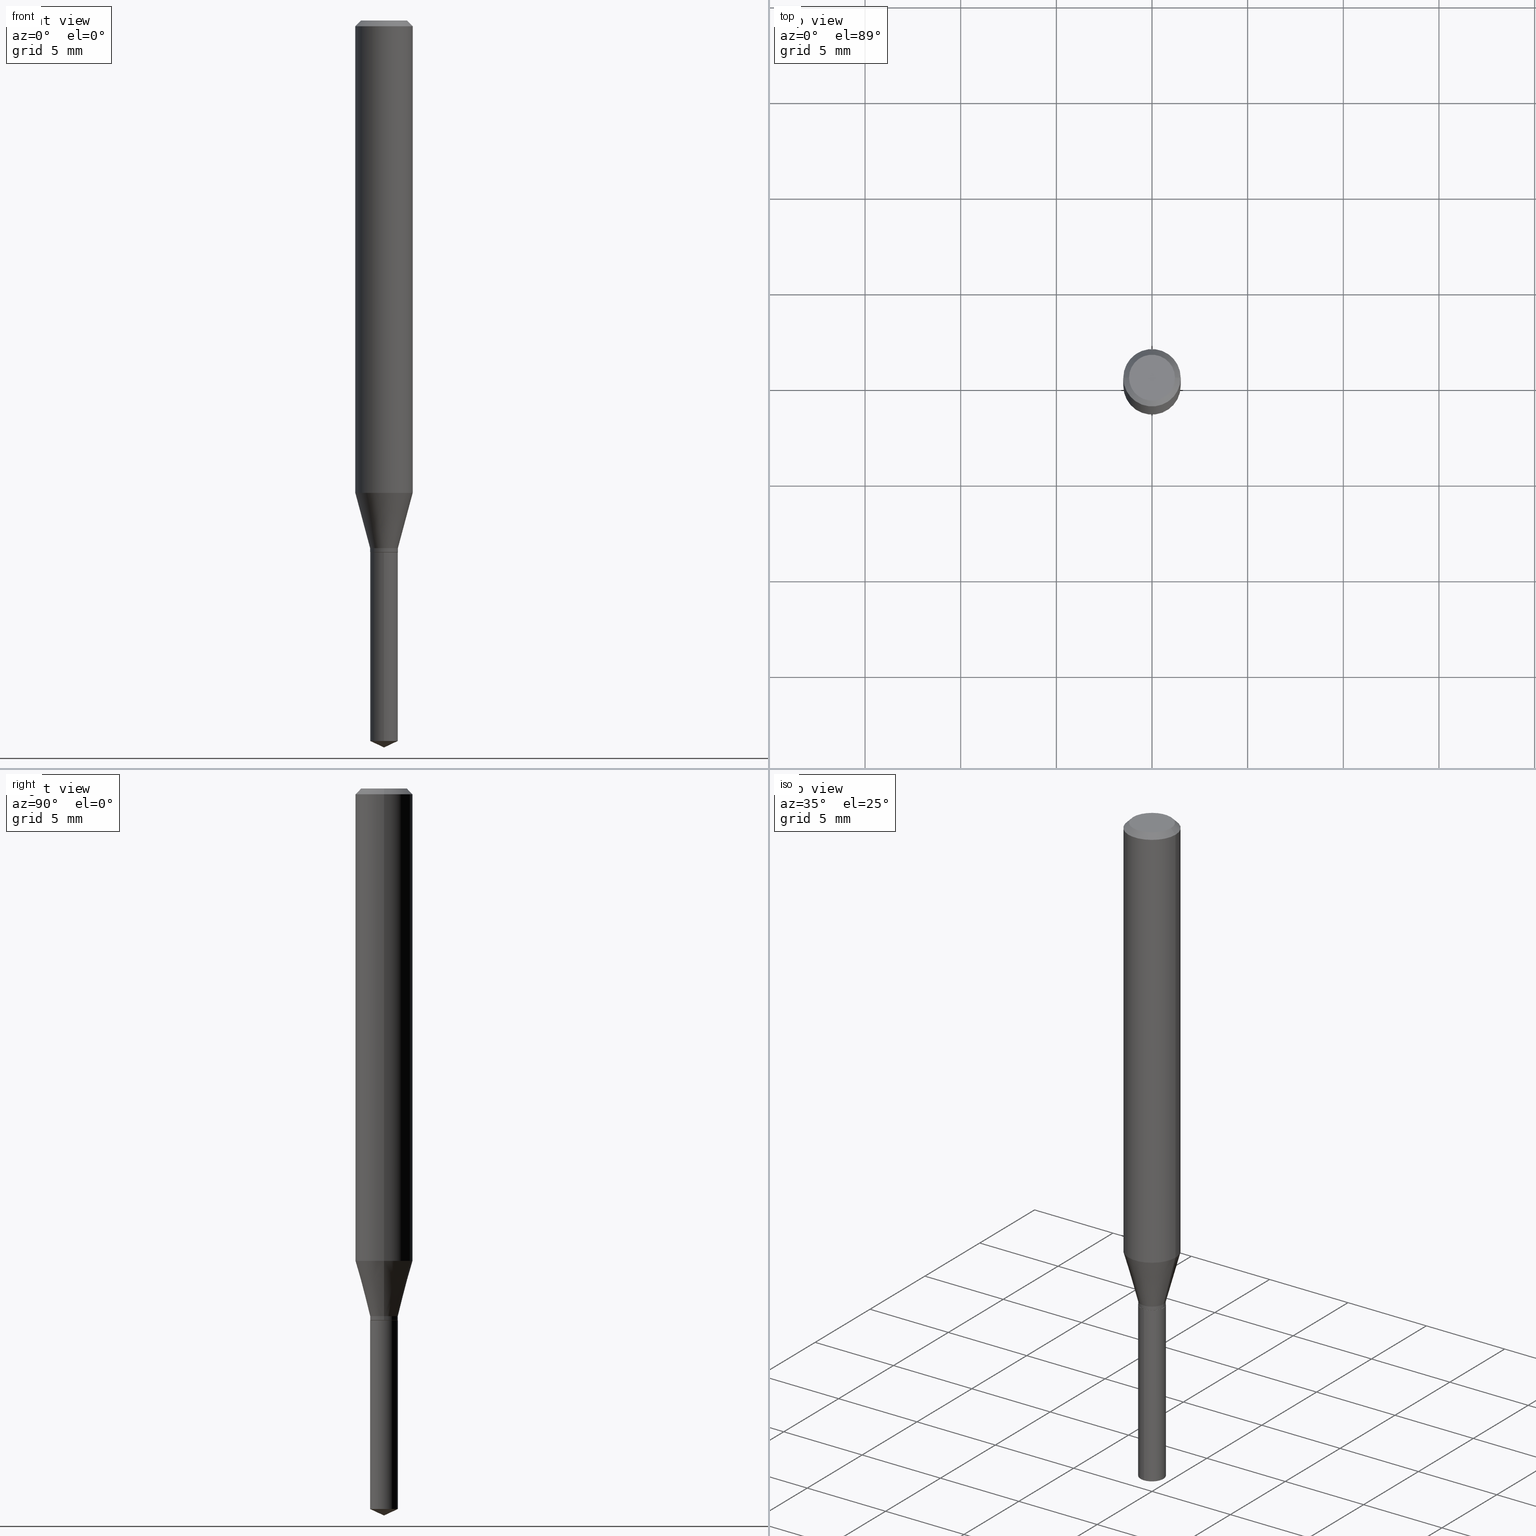
[diagram: canonical four-view strip — front | top / right | iso, engineering-drawing reading convention]
A machine part, canonical four-view strip (front | top / right | iso — engineering-drawing reading convention). The complete STEP part file that produces these views, byte-faithful:
ISO-10303-21;
HEADER;
FILE_DESCRIPTION (( 'STEP AP203' ),
    '1' );
FILE_NAME ('08164.STEP',
    '2024-04-24T13:41:57',
    ( '' ),
    ( '' ),
    'SwSTEP 2.0',
    'SolidWorks 2023',
    '' );
FILE_SCHEMA (( 'CONFIG_CONTROL_DESIGN' ));
ENDSEC;

DATA;
#1 = ORIENTED_EDGE ( 'NONE', *, *, #367, .T. ) ;
#2 = SHAPE_DEFINITION_REPRESENTATION ( #354, #436 ) ;
#3 = EDGE_LOOP ( 'NONE', ( #474, #376, #264, #287 ) ) ;
#4 = LINE ( 'NONE', #158, #81 ) ;
#5 = EDGE_CURVE ( 'NONE', #350, #254, #451, .T. ) ;
#6 = PERSON_AND_ORGANIZATION ( #357, #272 ) ;
#7 = CONICAL_SURFACE ( 'NONE', #411, 0.02855000000000000246, 0.2617993877991500740 ) ;
#8 = FACE_OUTER_BOUND ( 'NONE', #301, .T. ) ;
#9 = PERSON_AND_ORGANIZATION ( #357, #272 ) ;
#10 = CARTESIAN_POINT ( 'NONE',  ( 0.02804999999999999508, -4.017298428472921785E-15, -1.094499999999999806 ) ) ;
#11 = DATE_AND_TIME ( #49, #387 ) ;
#12 = CIRCLE ( 'NONE', #455, 0.02854999999999999899 ) ;
#13 = CARTESIAN_POINT ( 'NONE',  ( 2.676565608369631794E-29, -3.821426325363822773E-15, -1.094499999999999806 ) ) ;
#14 = ADVANCED_FACE ( 'NONE', ( #422 ), #228, .F. ) ;
#15 =( GEOMETRIC_REPRESENTATION_CONTEXT ( 3 ) GLOBAL_UNCERTAINTY_ASSIGNED_CONTEXT ( ( #369 ) ) GLOBAL_UNIT_ASSIGNED_CONTEXT ( ( #490, #222, #188 ) ) REPRESENTATION_CONTEXT ( 'NONE', 'WORKASPACE' ) );
#16 = CARTESIAN_POINT ( 'NONE',  ( 2.888098660104663328E-31, -4.123439461173779030E-17, -0.01181000000000006871 ) ) ;
#17 = AXIS2_PLACEMENT_3D ( 'NONE', #74, #414, #343 ) ;
#18 = CONICAL_SURFACE ( 'NONE', #300, 0.05904999999999999832, 0.7853981633974452814 ) ;
#19 = DIRECTION ( 'NONE',  ( -2.445468806185136597E-29, 3.491481338843145583E-15, 1.000000000000000000 ) ) ;
#20 = ORIENTED_EDGE ( 'NONE', *, *, #351, .F. ) ;
#21 = CC_DESIGN_DATE_AND_TIME_ASSIGNMENT ( #129, #117, ( #400 ) ) ;
#22 = DIRECTION ( 'NONE',  ( -6.982962677686265133E-15, -1.000000000000000000, 4.784322230585399479E-15 ) ) ;
#23 = ORIENTED_EDGE ( 'NONE', *, *, #328, .F. ) ;
#24 = CARTESIAN_POINT ( 'NONE',  ( 2.655534576636439869E-29, -3.791399585849771334E-15, -1.085899999999999865 ) ) ;
#25 = VERTEX_POINT ( 'NONE', #226 ) ;
#26 = CARTESIAN_POINT ( 'NONE',  ( 0.000000000000000000, 0.000000000000000000, 0.000000000000000000 ) ) ;
#27 = LINE ( 'NONE', #178, #423 ) ;
#28 = PRODUCT_RELATED_PRODUCT_CATEGORY ( 'detail', '', ( #267 ) ) ;
#29 = CIRCLE ( 'NONE', #91, 0.04724000000000000421 ) ;
#30 = EDGE_LOOP ( 'NONE', ( #114, #327, #485, #295 ) ) ;
#31 = APPLICATION_CONTEXT ( 'configuration controlled 3d designs of mechanical parts and assemblies' ) ;
#32 = FACE_OUTER_BOUND ( 'NONE', #193, .T. ) ;
#33 = CARTESIAN_POINT ( 'NONE',  ( 2.655534576636439869E-29, -3.791399585849771334E-15, -1.085899999999999865 ) ) ;
#34 = ADVANCED_FACE ( 'NONE', ( #381 ), #302, .T. ) ;
#35 = ORIENTED_EDGE ( 'NONE', *, *, #487, .F. ) ;
#36 = CARTESIAN_POINT ( 'NONE',  ( 0.000000000000000000, 0.000000000000000000, 0.000000000000000000 ) ) ;
#37 = EDGE_LOOP ( 'NONE', ( #403, #104, #231, #154 ) ) ;
#38 = LOCAL_TIME ( 9, 41, 57.00000000000000000, #89 ) ;
#39 = VECTOR ( 'NONE', #435, 39.37007874015748143 ) ;
#40 = VERTEX_POINT ( 'NONE', #341 ) ;
#41 = CARTESIAN_POINT ( 'NONE',  ( 0.000000000000000000, 0.000000000000000000, 0.000000000000000000 ) ) ;
#42 = VECTOR ( 'NONE', #113, 39.37007874015747433 ) ;
#43 = APPROVAL ( #316, 'UNSPECIFIED' ) ;
#44 = COORDINATED_UNIVERSAL_TIME_OFFSET ( 5, 0, .BEHIND. ) ;
#45 = LINE ( 'NONE', #52, #58 ) ;
#46 = EDGE_CURVE ( 'NONE', #62, #40, #307, .T. ) ;
#47 = CARTESIAN_POINT ( 'NONE',  ( -0.02855000000000000246, -3.602680134212577558E-15, -1.085899999999999865 ) ) ;
#48 = ADVANCED_FACE ( 'NONE', ( #309 ), #148, .T. ) ;
#49 = CALENDAR_DATE ( 2024, 24, 4 ) ;
#50 = DIRECTION ( 'NONE',  ( -2.445468806185136597E-29, 3.491481338843145583E-15, 1.000000000000000000 ) ) ;
#51 = VECTOR ( 'NONE', #368, 39.37007874015748143 ) ;
#52 = CARTESIAN_POINT ( 'NONE',  ( -0.05904999999999999832, 3.711095515056362547E-16, -0.01181000000000006871 ) ) ;
#53 = VECTOR ( 'NONE', #303, 39.37007874015748143 ) ;
#54 = CARTESIAN_POINT ( 'NONE',  ( 2.028599510595448342E-16, 0.02854999999999481564, -1.482786916359674967 ) ) ;
#55 = AXIS2_PLACEMENT_3D ( 'NONE', #13, #362, #197 ) ;
#56 = DIRECTION ( 'NONE',  ( 1.000000000000000000, -6.982962677686266711E-15, 4.876176775795935232E-29 ) ) ;
#57 = ORIENTED_EDGE ( 'NONE', *, *, #372, .F. ) ;
#58 = VECTOR ( 'NONE', #461, 39.37007874015748143 ) ;
#59 = DIRECTION ( 'NONE',  ( -6.982962677686265133E-15, -1.000000000000000000, 0.000000000000000000 ) ) ;
#60 = LINE ( 'NONE', #286, #39 ) ;
#61 = LOCAL_TIME ( 9, 41, 57.00000000000000000, #464 ) ;
#62 = VERTEX_POINT ( 'NONE', #245 ) ;
#63 = CONICAL_SURFACE ( 'NONE', #128, 0.02804999999999999508, 0.7853981633974184140 ) ;
#64 = ADVANCED_FACE ( 'NONE', ( #398 ), #342, .T. ) ;
#65 = DIRECTION ( 'NONE',  ( -2.445468806185136597E-29, 3.491481338843145583E-15, 1.000000000000000000 ) ) ;
#66 = ORIENTED_EDGE ( 'NONE', *, *, #389, .F. ) ;
#67 = CARTESIAN_POINT ( 'NONE',  ( 3.658531675699582644E-29, -5.223797420576805502E-15, -1.496099999999999985 ) ) ;
#68 = CARTESIAN_POINT ( 'NONE',  ( 0.02855000000000000246, -4.019044169142343288E-15, -1.093999999999999861 ) ) ;
#69 = DIRECTION ( 'NONE',  ( 1.000000000000000000, -6.982962677686265922E-15, 4.876176775795935793E-29 ) ) ;
#70 = CARTESIAN_POINT ( 'NONE',  ( 2.655534576636439869E-29, -3.791399585849771334E-15, -1.085899999999999865 ) ) ;
#71 = EDGE_LOOP ( 'NONE', ( #235, #138, #66 ) ) ;
#72 = ORIENTED_EDGE ( 'NONE', *, *, #137, .F. ) ;
#73 = CIRCLE ( 'NONE', #99, 0.02804999999999999508 ) ;
#74 = CARTESIAN_POINT ( 'NONE',  ( 3.626184356031370148E-29, -5.177015148886716837E-15, -1.482786916359674967 ) ) ;
#75 = AXIS2_PLACEMENT_3D ( 'NONE', #70, #227, #382 ) ;
#76 = ORIENTED_EDGE ( 'NONE', *, *, #207, .F. ) ;
#77 = CIRCLE ( 'NONE', #335, 0.02855000000000000246 ) ;
#78 = APPROVAL_STATUS ( 'not_yet_approved' ) ;
#79 = EDGE_CURVE ( 'NONE', #330, #248, #45, .T. ) ;
#80 = CARTESIAN_POINT ( 'NONE',  ( 2.675342873966538993E-29, -3.819680584694400481E-15, -1.093999999999999861 ) ) ;
#81 = VECTOR ( 'NONE', #130, 39.37007874015748143 ) ;
#82 = APPLICATION_PROTOCOL_DEFINITION ( 'international standard', 'config_control_design', 1994, #135 ) ;
#83 = CARTESIAN_POINT ( 'NONE',  ( -0.05905000000000011628, -2.974397335001072911E-15, -0.9720724503691490215 ) ) ;
#84 = AXIS2_PLACEMENT_3D ( 'NONE', #33, #488, #186 ) ;
#85 = DATE_AND_TIME ( #278, #61 ) ;
#86 = DIRECTION ( 'NONE',  ( 2.445468806185136597E-29, -3.491481338843145583E-15, -1.000000000000000000 ) ) ;
#87 = CALENDAR_DATE ( 2024, 24, 4 ) ;
#88 = CARTESIAN_POINT ( 'NONE',  ( 2.676565608369631794E-29, -3.821426325363822773E-15, -1.094499999999999806 ) ) ;
#89 = COORDINATED_UNIVERSAL_TIME_OFFSET ( 5, 0, .BEHIND. ) ;
#90 = CYLINDRICAL_SURFACE ( 'NONE', #232, 0.05905000000000006077 ) ;
#91 = AXIS2_PLACEMENT_3D ( 'NONE', #409, #288, #177 ) ;
#92 = CARTESIAN_POINT ( 'NONE',  ( 2.676565608369631794E-29, -3.821426325363822773E-15, -1.094499999999999806 ) ) ;
#93 = EDGE_LOOP ( 'NONE', ( #470, #223 ) ) ;
#94 = DIRECTION ( 'NONE',  ( -2.445468806185136597E-29, 3.491481338843145583E-15, 1.000000000000000000 ) ) ;
#95 = EDGE_CURVE ( 'NONE', #189, #152, #124, .T. ) ;
#96 = LINE ( 'NONE', #406, #51 ) ;
#97 = EDGE_LOOP ( 'NONE', ( #383, #374, #212, #483 ) ) ;
#98 = CARTESIAN_POINT ( 'NONE',  ( -0.05905000000000006077, 4.195754854663395916E-16, -2.904631170795524694E-30 ) ) ;
#99 = AXIS2_PLACEMENT_3D ( 'NONE', #88, #50, #203 ) ;
#100 = ORIENTED_EDGE ( 'NONE', *, *, #265, .F. ) ;
#101 = AXIS2_PLACEMENT_3D ( 'NONE', #345, #308, #453 ) ;
#102 = ADVANCED_FACE ( 'NONE', ( #321 ), #425, .T. ) ;
#103 = FACE_OUTER_BOUND ( 'NONE', #37, .T. ) ;
#104 = ORIENTED_EDGE ( 'NONE', *, *, #487, .T. ) ;
#105 = CIRCLE ( 'NONE', #482, 0.02854999999999999899 ) ;
#106 = DIRECTION ( 'NONE',  ( 1.000000000000000000, -6.982962677686258822E-15, 0.000000000000000000 ) ) ;
#107 = ORIENTED_EDGE ( 'NONE', *, *, #5, .T. ) ;
#108 = CC_DESIGN_PERSON_AND_ORGANIZATION_ASSIGNMENT ( #190, #431, ( #267 ) ) ;
#109 = VERTEX_POINT ( 'NONE', #10 ) ;
#110 = DIRECTION ( 'NONE',  ( -2.445468806185136597E-29, 3.491481338843145583E-15, 1.000000000000000000 ) ) ;
#111 = ORIENTED_EDGE ( 'NONE', *, *, #452, .T. ) ;
#112 = CYLINDRICAL_SURFACE ( 'NONE', #253, 0.02855000000000000246 ) ;
#113 = DIRECTION ( 'NONE',  ( 0.2588190451025213501, 1.565188264969621968E-15, 0.9659258262890682012 ) ) ;
#114 = ORIENTED_EDGE ( 'NONE', *, *, #466, .F. ) ;
#115 = VECTOR ( 'NONE', #475, 39.37007874015748143 ) ;
#116 = APPROVAL ( #388, 'UNSPECIFIED' ) ;
#117 = DATE_TIME_ROLE ( 'classification_date' ) ;
#118 = VECTOR ( 'NONE', #447, 39.37007874015748143 ) ;
#119 = DIRECTION ( 'NONE',  ( -6.982962677686266711E-15, -1.000000000000000000, 3.520397390770418371E-15 ) ) ;
#120 = EDGE_CURVE ( 'NONE', #448, #407, #122, .T. ) ;
#121 = DIRECTION ( 'NONE',  ( 6.439704144417040608E-15, 0.9063077870366537114, 0.4226182617406912811 ) ) ;
#122 = CIRCLE ( 'NONE', #168, 0.02855000000000000246 ) ;
#123 = PERSON_AND_ORGANIZATION_ROLE ( 'creator' ) ;
#124 = LINE ( 'NONE', #274, #405 ) ;
#125 = CC_DESIGN_PERSON_AND_ORGANIZATION_ASSIGNMENT ( #156, #123, ( #294 ) ) ;
#126 = AXIS2_PLACEMENT_3D ( 'NONE', #310, #465, #119 ) ;
#127 = DIRECTION ( 'NONE',  ( -2.445468806185136597E-29, 3.491481338843145583E-15, 1.000000000000000000 ) ) ;
#128 = AXIS2_PLACEMENT_3D ( 'NONE', #380, #444, #449 ) ;
#129 = DATE_AND_TIME ( #237, #38 ) ;
#130 = DIRECTION ( 'NONE',  ( -2.445468806185136877E-29, 3.491481338843145188E-15, 1.000000000000000000 ) ) ;
#131 = FACE_OUTER_BOUND ( 'NONE', #386, .T. ) ;
#132 = ADVANCED_FACE ( 'NONE', ( #8 ), #18, .T. ) ;
#133 = DIRECTION ( 'NONE',  ( -6.982962677686265133E-15, -1.000000000000000000, 4.784322230585399479E-15 ) ) ;
#134 = ORIENTED_EDGE ( 'NONE', *, *, #385, .F. ) ;
#135 = APPLICATION_CONTEXT ( 'configuration controlled 3d designs of mechanical parts and assemblies' ) ;
#136 = DIRECTION ( 'NONE',  ( 1.000000000000000000, -6.982962677686266711E-15, 0.000000000000000000 ) ) ;
#137 = EDGE_CURVE ( 'NONE', #40, #268, #4, .T. ) ;
#138 = ORIENTED_EDGE ( 'NONE', *, *, #167, .T. ) ;
#139 = CARTESIAN_POINT ( 'NONE',  ( -1.993635844479161093E-16, -0.02855000000000381885, -1.094499999999999806 ) ) ;
#140 = EDGE_CURVE ( 'NONE', #254, #338, #315, .T. ) ;
#141 = CARTESIAN_POINT ( 'NONE',  ( -0.05904999999999999832, -1.298028122073235376E-15, -0.01181000000000006871 ) ) ;
#142 = CIRCLE ( 'NONE', #292, 0.05905000000000011628 ) ;
#143 = ORIENTED_EDGE ( 'NONE', *, *, #140, .F. ) ;
#144 = LOCAL_TIME ( 9, 41, 57.00000000000000000, #44 ) ;
#145 = CIRCLE ( 'NONE', #323, 0.04724000000000000421 ) ;
#146 = VECTOR ( 'NONE', #121, 39.37007874015748854 ) ;
#147 = ORIENTED_EDGE ( 'NONE', *, *, #402, .T. ) ;
#148 = CONICAL_SURFACE ( 'NONE', #187, 84.42940631927518780, 1.134464013796319781 ) ;
#149 = DIRECTION ( 'NONE',  ( 1.000000000000000000, -6.982962677686266711E-15, 4.876176775795935232E-29 ) ) ;
#150 = ORIENTED_EDGE ( 'NONE', *, *, #259, .F. ) ;
#151 = CARTESIAN_POINT ( 'NONE',  ( 2.028599510595352939E-16, 0.02854999999999617566, -1.094500000000000028 ) ) ;
#152 = VERTEX_POINT ( 'NONE', #83 ) ;
#153 = DIRECTION ( 'NONE',  ( -2.445468806185136597E-29, 3.491481338843145583E-15, 1.000000000000000000 ) ) ;
#154 = ORIENTED_EDGE ( 'NONE', *, *, #285, .F. ) ;
#155 = CC_DESIGN_DATE_AND_TIME_ASSIGNMENT ( #273, #282, ( #281 ) ) ;
#156 = PERSON_AND_ORGANIZATION ( #357, #272 ) ;
#157 = ORIENTED_EDGE ( 'NONE', *, *, #224, .F. ) ;
#158 = CARTESIAN_POINT ( 'NONE',  ( 0.05905000000000006077, -4.123439461173744764E-16, 2.879382386107503023E-30 ) ) ;
#159 = DIRECTION ( 'NONE',  ( -0.2588190451025213501, 5.211531920934551042E-15, 0.9659258262890682012 ) ) ;
#160 = DIRECTION ( 'NONE',  ( 2.445468806185136597E-29, -3.491481338843145583E-15, -1.000000000000000000 ) ) ;
#161 = CONICAL_SURFACE ( 'NONE', #477, 0.05904999999999999832, 0.7853981633974452814 ) ;
#162 = DATE_AND_TIME ( #87, #144 ) ;
#163 = APPROVAL_PERSON_ORGANIZATION ( #9, #394, #352 ) ;
#164 = CARTESIAN_POINT ( 'NONE',  ( 3.626184356031370148E-29, -5.177015148886716837E-15, -1.482786916359674967 ) ) ;
#165 = AXIS2_PLACEMENT_3D ( 'NONE', #364, #19, #249 ) ;
#166 = DIRECTION ( 'NONE',  ( -2.445468806185136597E-29, 3.491481338843145583E-15, 1.000000000000000000 ) ) ;
#167 = EDGE_CURVE ( 'NONE', #350, #250, #428, .T. ) ;
#168 = AXIS2_PLACEMENT_3D ( 'NONE', #80, #206, #238 ) ;
#169 = MANIFOLD_SOLID_BREP ( 'Body-Move/Copy2[2]', #427 ) ;
#170 = DIRECTION ( 'NONE',  ( -2.445468806185136597E-29, 3.491481338843145583E-15, 1.000000000000000000 ) ) ;
#171 = ORIENTED_EDGE ( 'NONE', *, *, #379, .T. ) ;
#172 = ADVANCED_FACE ( 'NONE', ( #201 ), #90, .T. ) ;
#173 = CARTESIAN_POINT ( 'NONE',  ( 2.676565608369631794E-29, -3.821426325363822773E-15, -1.094499999999999806 ) ) ;
#174 = ORIENTED_EDGE ( 'NONE', *, *, #184, .T. ) ;
#175 = DIRECTION ( 'NONE',  ( -2.445468806185136597E-29, 3.491481338843145583E-15, 1.000000000000000000 ) ) ;
#176 = ORIENTED_EDGE ( 'NONE', *, *, #137, .T. ) ;
#177 = DIRECTION ( 'NONE',  ( 1.000000000000000000, -6.982962677686266711E-15, 4.876185090822587894E-29 ) ) ;
#178 = CARTESIAN_POINT ( 'NONE',  ( 0.02855000000000000246, -1.993635844479429306E-16, 1.392148469489739614E-30 ) ) ;
#179 = VECTOR ( 'NONE', #437, 39.37007874015748143 ) ;
#180 = EDGE_LOOP ( 'NONE', ( #157, #419, #176, #413 ) ) ;
#181 = ADVANCED_FACE ( 'NONE', ( #463 ), #314, .F. ) ;
#182 = DIRECTION ( 'NONE',  ( -2.445468806185136597E-29, 3.491481338843145583E-15, 1.000000000000000000 ) ) ;
#183 = DIRECTION ( 'NONE',  ( -6.328713451373386733E-15, -0.9063077870366508249, 0.4226182617406975539 ) ) ;
#184 = EDGE_CURVE ( 'NONE', #25, #338, #12, .T. ) ;
#185 = DIRECTION ( 'NONE',  ( -2.445468806185136597E-29, 3.491481338843145583E-15, 1.000000000000000000 ) ) ;
#186 = DIRECTION ( 'NONE',  ( 1.000000000000000000, -6.982962677686258822E-15, 0.000000000000000000 ) ) ;
#187 = AXIS2_PLACEMENT_3D ( 'NONE', #454, #244, #317 ) ;
#188 =( NAMED_UNIT ( * ) SI_UNIT ( $, .STERADIAN. ) SOLID_ANGLE_UNIT ( ) );
#189 = VERTEX_POINT ( 'NONE', #47 ) ;
#190 = PERSON_AND_ORGANIZATION ( #357, #272 ) ;
#191 = ADVANCED_FACE ( 'NONE', ( #393 ), #161, .T. ) ;
#192 = CC_DESIGN_SECURITY_CLASSIFICATION ( #400, ( #294 ) ) ;
#193 = EDGE_LOOP ( 'NONE', ( #150, #147, #111, #35 ) ) ;
#194 = CONICAL_SURFACE ( 'NONE', #256, 0.02804999999999999508, 0.7853981633974184140 ) ;
#195 = PERSON_AND_ORGANIZATION ( #357, #272 ) ;
#196 = ORIENTED_EDGE ( 'NONE', *, *, #433, .F. ) ;
#197 = DIRECTION ( 'NONE',  ( -6.982962677686265133E-15, -1.000000000000000000, 4.784322230585399479E-15 ) ) ;
#198 = ADVANCED_FACE ( 'NONE', ( #432 ), #242, .T. ) ;
#199 = SECURITY_CLASSIFICATION_LEVEL ( 'unclassified' ) ;
#200 = DIRECTION ( 'NONE',  ( -1.000000000000000000, 6.982962677686266711E-15, 0.000000000000000000 ) ) ;
#201 = FACE_OUTER_BOUND ( 'NONE', #180, .T. ) ;
#202 = PERSON_AND_ORGANIZATION_ROLE ( 'creator' ) ;
#203 = DIRECTION ( 'NONE',  ( 1.000000000000000000, -6.982962677686259611E-15, 0.000000000000000000 ) ) ;
#204 = AXIS2_PLACEMENT_3D ( 'NONE', #459, #397, #283 ) ;
#205 = CIRCLE ( 'NONE', #75, 0.02855000000000000246 ) ;
#206 = DIRECTION ( 'NONE',  ( -2.445468806185136597E-29, 3.491481338843145583E-15, 1.000000000000000000 ) ) ;
#207 = EDGE_CURVE ( 'NONE', #109, #332, #73, .T. ) ;
#208 = AXIS2_PLACEMENT_3D ( 'NONE', #217, #166, #324 ) ;
#209 = CARTESIAN_POINT ( 'NONE',  ( 0.05904999999999999832, -4.535783407291118600E-16, -0.01181000000000006871 ) ) ;
#210 = ORIENTED_EDGE ( 'NONE', *, *, #379, .F. ) ;
#211 = CARTESIAN_POINT ( 'NONE',  ( -1.993635844479065690E-16, -0.02855000000000517194, -1.482786916359674967 ) ) ;
#212 = ORIENTED_EDGE ( 'NONE', *, *, #120, .F. ) ;
#213 = AXIS2_PLACEMENT_3D ( 'NONE', #344, #450, #69 ) ;
#214 = EDGE_CURVE ( 'NONE', #250, #254, #399, .T. ) ;
#215 = LINE ( 'NONE', #98, #115 ) ;
#216 = ORIENTED_EDGE ( 'NONE', *, *, #385, .T. ) ;
#217 = CARTESIAN_POINT ( 'NONE',  ( 2.888098660104663328E-31, -4.123439461173779030E-17, -0.01181000000000006871 ) ) ;
#218 = ORIENTED_EDGE ( 'NONE', *, *, #120, .T. ) ;
#219 = CARTESIAN_POINT ( 'NONE',  ( -0.02804999999999999508, -3.619469860809003333E-15, -1.094499999999999806 ) ) ;
#220 = EDGE_LOOP ( 'NONE', ( #366, #174 ) ) ;
#221 = DESIGN_CONTEXT ( 'detailed design', #135, 'design' ) ;
#222 =( NAMED_UNIT ( * ) PLANE_ANGLE_UNIT ( ) SI_UNIT ( $, .RADIAN. ) );
#223 = ORIENTED_EDGE ( 'NONE', *, *, #265, .T. ) ;
#224 = EDGE_CURVE ( 'NONE', #152, #248, #215, .T. ) ;
#225 = DIRECTION ( 'NONE',  ( 1.000000000000000000, -6.982962677686258822E-15, 0.000000000000000000 ) ) ;
#226 = CARTESIAN_POINT ( 'NONE',  ( 2.028599510595448835E-16, 0.02854999999999617566, -1.094500000000000028 ) ) ;
#227 = DIRECTION ( 'NONE',  ( -2.445468806185136597E-29, 3.491481338843145583E-15, 1.000000000000000000 ) ) ;
#228 = PLANE ( 'NONE',  #213 ) ;
#229 = ADVANCED_FACE ( 'NONE', ( #251 ), #467, .T. ) ;
#230 = LINE ( 'NONE', #151, #53 ) ;
#231 = ORIENTED_EDGE ( 'NONE', *, *, #46, .T. ) ;
#232 = AXIS2_PLACEMENT_3D ( 'NONE', #41, #353, #430 ) ;
#233 = CC_DESIGN_APPROVAL ( #394, ( #281 ) ) ;
#234 = DIRECTION ( 'NONE',  ( -2.445468806185136877E-29, 3.491481338843145188E-15, 1.000000000000000000 ) ) ;
#235 = ORIENTED_EDGE ( 'NONE', *, *, #5, .F. ) ;
#236 = AXIS2_PLACEMENT_3D ( 'NONE', #329, #471, #136 ) ;
#237 = CALENDAR_DATE ( 2024, 24, 4 ) ;
#238 = DIRECTION ( 'NONE',  ( 1.000000000000000000, -6.982962677686258822E-15, 0.000000000000000000 ) ) ;
#239 = PERSON_AND_ORGANIZATION ( #357, #272 ) ;
#240 = DIRECTION ( 'NONE',  ( -6.982962677686265133E-15, -1.000000000000000000, 4.784322230585399479E-15 ) ) ;
#241 = CALENDAR_DATE ( 2024, 24, 4 ) ;
#242 = CYLINDRICAL_SURFACE ( 'NONE', #311, 0.05905000000000006077 ) ;
#243 = APPROVAL_ROLE ( '' ) ;
#244 = DIRECTION ( 'NONE',  ( -2.445662492480417196E-29, 3.491203969044364518E-15, 1.000000000000000000 ) ) ;
#245 = CARTESIAN_POINT ( 'NONE',  ( 0.02855000000000000246, -3.990763170297714142E-15, -1.085899999999999865 ) ) ;
#246 = CIRCLE ( 'NONE', #478, 0.05905000000000011628 ) ;
#247 = FACE_OUTER_BOUND ( 'NONE', #97, .T. ) ;
#248 = VERTEX_POINT ( 'NONE', #141 ) ;
#249 = DIRECTION ( 'NONE',  ( 1.000000000000000000, -6.982962677686259611E-15, 0.000000000000000000 ) ) ;
#250 = VERTEX_POINT ( 'NONE', #54 ) ;
#251 = FACE_OUTER_BOUND ( 'NONE', #348, .T. ) ;
#252 = PLANE ( 'NONE',  #319 ) ;
#253 = AXIS2_PLACEMENT_3D ( 'NONE', #36, #110, #149 ) ;
#254 = VERTEX_POINT ( 'NONE', #211 ) ;
#255 = APPROVAL_PERSON_ORGANIZATION ( #460, #116, #243 ) ;
#256 = AXIS2_PLACEMENT_3D ( 'NONE', #412, #175, #326 ) ;
#257 = DIRECTION ( 'NONE',  ( -2.445662492480417196E-29, 3.491203969044364518E-15, 1.000000000000000000 ) ) ;
#258 = EDGE_LOOP ( 'NONE', ( #378, #107, #472 ) ) ;
#259 = EDGE_CURVE ( 'NONE', #407, #189, #373, .T. ) ;
#260 =( LENGTH_UNIT ( ) NAMED_UNIT ( * ) SI_UNIT ( $, .METRE. ) );
#261 = ORIENTED_EDGE ( 'NONE', *, *, #389, .T. ) ;
#262 = ORIENTED_EDGE ( 'NONE', *, *, #481, .T. ) ;
#263 = CARTESIAN_POINT ( 'NONE',  ( 0.02804999999999999508, -4.017298428472921785E-15, -1.094499999999999806 ) ) ;
#264 = ORIENTED_EDGE ( 'NONE', *, *, #457, .F. ) ;
#265 = EDGE_CURVE ( 'NONE', #416, #330, #29, .T. ) ;
#266 = DIRECTION ( 'NONE',  ( 1.000000000000000000, -6.982962677686266711E-15, 0.000000000000000000 ) ) ;
#267 = PRODUCT ( '08164', '08164', '', ( #269 ) ) ;
#268 = VERTEX_POINT ( 'NONE', #209 ) ;
#269 = MECHANICAL_CONTEXT ( 'NONE', #31, 'mechanical' ) ;
#270 = ORIENTED_EDGE ( 'NONE', *, *, #224, .T. ) ;
#271 = AXIS2_PLACEMENT_3D ( 'NONE', #26, #65, #56 ) ;
#272 = ORGANIZATION ( 'UNSPECIFIED', 'UNSPECIFIED', '' ) ;
#273 = DATE_AND_TIME ( #241, #440 ) ;
#274 = CARTESIAN_POINT ( 'NONE',  ( -0.02855000000000000246, -3.588539634790262196E-15, -1.085899999999999865 ) ) ;
#275 = CIRCLE ( 'NONE', #17, 0.02854999999999999899 ) ;
#276 = EDGE_CURVE ( 'NONE', #332, #407, #96, .T. ) ;
#277 = CARTESIAN_POINT ( 'NONE',  ( 2.676565608369631794E-29, -3.821426325363822773E-15, -1.094499999999999806 ) ) ;
#278 = CALENDAR_DATE ( 2024, 24, 4 ) ;
#279 = DIRECTION ( 'NONE',  ( -2.445662492480417196E-29, 3.491203969044364912E-15, 1.000000000000000000 ) ) ;
#280 = DIRECTION ( 'NONE',  ( 1.000000000000000000, -6.982962677686266711E-15, 4.876176775795935793E-29 ) ) ;
#281 = PRODUCT_DEFINITION ( 'UNKNOWN', '', #294, #221 ) ;
#282 = DATE_TIME_ROLE ( 'creation_date' ) ;
#283 = DIRECTION ( 'NONE',  ( 6.982962677686265922E-15, 1.000000000000000000, -3.491203969044364912E-15 ) ) ;
#284 = DIRECTION ( 'NONE',  ( -2.445662492480417196E-29, 3.491203969044364518E-15, 1.000000000000000000 ) ) ;
#285 = EDGE_CURVE ( 'NONE', #152, #40, #142, .T. ) ;
#286 = CARTESIAN_POINT ( 'NONE',  ( 0.05904999999999999832, -4.463468013801466955E-16, -0.01181000000000006871 ) ) ;
#287 = ORIENTED_EDGE ( 'NONE', *, *, #46, .F. ) ;
#288 = DIRECTION ( 'NONE',  ( -2.445468806185136597E-29, 3.491481338843145583E-15, 1.000000000000000000 ) ) ;
#289 = ORIENTED_EDGE ( 'NONE', *, *, #452, .F. ) ;
#290 = CARTESIAN_POINT ( 'NONE',  ( -0.02855000000000000246, 2.028599510595086205E-16, -1.404355968267775645E-30 ) ) ;
#291 = ORIENTED_EDGE ( 'NONE', *, *, #457, .T. ) ;
#292 = AXIS2_PLACEMENT_3D ( 'NONE', #333, #331, #370 ) ;
#293 = DIRECTION ( 'NONE',  ( 2.438088387897960049E-29, -3.491481338843145188E-15, -1.000000000000000000 ) ) ;
#294 = PRODUCT_DEFINITION_FORMATION_WITH_SPECIFIED_SOURCE ( 'ANY', '', #267, .NOT_KNOWN. ) ;
#295 = ORIENTED_EDGE ( 'NONE', *, *, #184, .F. ) ;
#296 = ADVANCED_FACE ( 'NONE', ( #473 ), #252, .F. ) ;
#297 = AXIS2_PLACEMENT_3D ( 'NONE', #418, #182, #225 ) ;
#298 = CARTESIAN_POINT ( 'NONE',  ( -0.02855000000000000246, -3.602680134212577558E-15, -1.093999999999999861 ) ) ;
#299 = ORIENTED_EDGE ( 'NONE', *, *, #259, .T. ) ;
#300 = AXIS2_PLACEMENT_3D ( 'NONE', #16, #86, #456 ) ;
#301 = EDGE_LOOP ( 'NONE', ( #23, #20, #476, #1 ) ) ;
#302 = CONICAL_SURFACE ( 'NONE', #84, 0.02855000000000000246, 0.2617993877991500740 ) ;
#303 = DIRECTION ( 'NONE',  ( -2.445662492480417196E-29, 3.491203969044364912E-15, 1.000000000000000000 ) ) ;
#304 = ADVANCED_FACE ( 'NONE', ( #103 ), #7, .T. ) ;
#305 = CARTESIAN_POINT ( 'NONE',  ( 8.265746106709734507E-48, -1.180129479067563789E-33, -3.380025165646692144E-19 ) ) ;
#306 = CARTESIAN_POINT ( 'NONE',  ( 2.655534576636439869E-29, -3.791399585849771334E-15, -1.085899999999999865 ) ) ;
#307 = LINE ( 'NONE', #420, #42 ) ;
#308 = DIRECTION ( 'NONE',  ( 0.000000000000000000, 0.000000000000000000, 1.000000000000000000 ) ) ;
#309 = FACE_OUTER_BOUND ( 'NONE', #71, .T. ) ;
#310 = CARTESIAN_POINT ( 'NONE',  ( -9.262718123545406171E-28, 1.322254813198949186E-13, 37.87397874015748300 ) ) ;
#311 = AXIS2_PLACEMENT_3D ( 'NONE', #356, #127, #280 ) ;
#312 = ADVANCED_FACE ( 'NONE', ( #131 ), #441, .T. ) ;
#313 = APPROVAL_DATE_TIME ( #162, #43 ) ;
#314 = PLANE ( 'NONE',  #204 ) ;
#315 = LINE ( 'NONE', #395, #365 ) ;
#316 = APPROVAL_STATUS ( 'not_yet_approved' ) ;
#317 = DIRECTION ( 'NONE',  ( -6.982962677686266711E-15, -1.000000000000000000, 3.520397390770418371E-15 ) ) ;
#318 = ADVANCED_FACE ( 'NONE', ( #247 ), #194, .T. ) ;
#319 = AXIS2_PLACEMENT_3D ( 'NONE', #439, #293, #434 ) ;
#320 = PERSON_AND_ORGANIZATION_ROLE ( 'design_supplier' ) ;
#321 = FACE_OUTER_BOUND ( 'NONE', #30, .T. ) ;
#322 = CC_DESIGN_APPROVAL ( #116, ( #400 ) ) ;
#323 = AXIS2_PLACEMENT_3D ( 'NONE', #305, #94, #375 ) ;
#324 = DIRECTION ( 'NONE',  ( 1.000000000000000000, -6.982962677686266711E-15, 0.000000000000000000 ) ) ;
#325 = CLOSED_SHELL ( 'NONE', ( #312, #48, #64, #102, #181 ) ) ;
#326 = DIRECTION ( 'NONE',  ( 1.000000000000000000, -6.982962677686259611E-15, 0.000000000000000000 ) ) ;
#327 = ORIENTED_EDGE ( 'NONE', *, *, #214, .T. ) ;
#328 = EDGE_CURVE ( 'NONE', #416, #268, #60, .T. ) ;
#329 = CARTESIAN_POINT ( 'NONE',  ( 2.888098660104663328E-31, -4.123439461173779030E-17, -0.01181000000000006871 ) ) ;
#330 = VERTEX_POINT ( 'NONE', #404 ) ;
#331 = DIRECTION ( 'NONE',  ( -2.445468806185136597E-29, 3.491481338843145583E-15, 1.000000000000000000 ) ) ;
#332 = VERTEX_POINT ( 'NONE', #219 ) ;
#333 = CARTESIAN_POINT ( 'NONE',  ( 2.377172854729703171E-29, -3.393972820467413587E-15, -0.9720724503691490215 ) ) ;
#334 = CC_DESIGN_PERSON_AND_ORGANIZATION_ASSIGNMENT ( #6, #355, ( #400 ) ) ;
#335 = AXIS2_PLACEMENT_3D ( 'NONE', #306, #153, #106 ) ;
#336 = CARTESIAN_POINT ( 'NONE',  ( 0.04724000000000000421, -3.852183633974369345E-16, -3.380025165621689721E-19 ) ) ;
#337 = CC_DESIGN_APPROVAL ( #43, ( #294 ) ) ;
#338 = VERTEX_POINT ( 'NONE', #139 ) ;
#339 = ORIENTED_EDGE ( 'NONE', *, *, #466, .T. ) ;
#340 = LINE ( 'NONE', #263, #118 ) ;
#341 = CARTESIAN_POINT ( 'NONE',  ( 0.05905000000000011628, -3.806316766584788113E-15, -0.9720724503691490215 ) ) ;
#342 = CONICAL_SURFACE ( 'NONE', #126, 84.42940631927518780, 1.134464013796319781 ) ;
#343 = DIRECTION ( 'NONE',  ( -6.982962677686265133E-15, -1.000000000000000000, 0.000000000000000000 ) ) ;
#344 = CARTESIAN_POINT ( 'NONE',  ( 2.676565608369631794E-29, -3.821426325363822773E-15, -1.094499999999999806 ) ) ;
#345 = CARTESIAN_POINT ( 'NONE',  ( 0.000000000000000000, 0.000000000000000000, 0.000000000000000000 ) ) ;
#346 = MANIFOLD_SOLID_BREP ( 'Body-Move/Copy2[1]', #325 ) ;
#347 = AXIS2_PLACEMENT_3D ( 'NONE', #92, #257, #133 ) ;
#348 = EDGE_LOOP ( 'NONE', ( #218, #299, #196, #289 ) ) ;
#349 = APPROVAL_DATE_TIME ( #85, #116 ) ;
#350 = VERTEX_POINT ( 'NONE', #401 ) ;
#351 = EDGE_CURVE ( 'NONE', #330, #416, #145, .T. ) ;
#352 = APPROVAL_ROLE ( '' ) ;
#353 = DIRECTION ( 'NONE',  ( -2.445468806185136597E-29, 3.491481338843145583E-15, 1.000000000000000000 ) ) ;
#354 = PRODUCT_DEFINITION_SHAPE ( 'NONE', 'NONE',  #281 ) ;
#355 = PERSON_AND_ORGANIZATION_ROLE ( 'classification_officer' ) ;
#356 = CARTESIAN_POINT ( 'NONE',  ( 0.000000000000000000, 0.000000000000000000, 0.000000000000000000 ) ) ;
#357 = PERSON ( 'UNSPECIFIED', 'UNSPECIFIED', 'UNSPECIFIED', ('UNSPECIFIED'), ('UNSPECIFIED'), ('UNSPECIFIED') ) ;
#358 = CARTESIAN_POINT ( 'NONE',  ( 2.888098660104663328E-31, -4.123439461173779030E-17, -0.01181000000000006871 ) ) ;
#359 = COORDINATED_UNIVERSAL_TIME_OFFSET ( 5, 0, .BEHIND. ) ;
#360 = DIRECTION ( 'NONE',  ( -2.445662492480417196E-29, 3.491203969044364518E-15, 1.000000000000000000 ) ) ;
#361 = APPROVAL_PERSON_ORGANIZATION ( #462, #43, #429 ) ;
#362 = DIRECTION ( 'NONE',  ( -2.445662492480417196E-29, 3.491203969044364518E-15, 1.000000000000000000 ) ) ;
#363 = DIMENSIONAL_EXPONENTS ( 1.000000000000000000, 0.000000000000000000, 0.000000000000000000, 0.000000000000000000, 0.000000000000000000, 0.000000000000000000, 0.000000000000000000 ) ;
#364 = CARTESIAN_POINT ( 'NONE',  ( 2.676565608369631794E-29, -3.821426325363822773E-15, -1.094499999999999806 ) ) ;
#365 = VECTOR ( 'NONE', #279, 39.37007874015748143 ) ;
#366 = ORIENTED_EDGE ( 'NONE', *, *, #372, .T. ) ;
#367 = EDGE_CURVE ( 'NONE', #248, #268, #424, .T. ) ;
#368 = DIRECTION ( 'NONE',  ( -0.7071067811865263675, 7.493145998870278430E-15, 0.7071067811865686670 ) ) ;
#369 = UNCERTAINTY_MEASURE_WITH_UNIT (LENGTH_MEASURE( 1.000000000000000082E-05 ), #490, 'distance_accuracy_value', 'NONE');
#370 = DIRECTION ( 'NONE',  ( 1.000000000000000000, -6.982962677686266711E-15, 0.000000000000000000 ) ) ;
#371 = EDGE_LOOP ( 'NONE', ( #291, #270, #134, #72 ) ) ;
#372 = EDGE_CURVE ( 'NONE', #338, #25, #105, .T. ) ;
#373 = LINE ( 'NONE', #290, #179 ) ;
#374 = ORIENTED_EDGE ( 'NONE', *, *, #276, .T. ) ;
#375 = DIRECTION ( 'NONE',  ( 1.000000000000000000, -6.982962677686266711E-15, 4.876185090822587894E-29 ) ) ;
#376 = ORIENTED_EDGE ( 'NONE', *, *, #95, .T. ) ;
#377 = CARTESIAN_POINT ( 'NONE',  ( 2.377172854729703171E-29, -3.393972820467413587E-15, -0.9720724503691490215 ) ) ;
#378 = ORIENTED_EDGE ( 'NONE', *, *, #167, .F. ) ;
#379 = EDGE_CURVE ( 'NONE', #332, #109, #390, .T. ) ;
#380 = CARTESIAN_POINT ( 'NONE',  ( 2.676565608369631794E-29, -3.821426325363822773E-15, -1.094499999999999806 ) ) ;
#381 = FACE_OUTER_BOUND ( 'NONE', #3, .T. ) ;
#382 = DIRECTION ( 'NONE',  ( 1.000000000000000000, -6.982962677686258822E-15, 0.000000000000000000 ) ) ;
#383 = ORIENTED_EDGE ( 'NONE', *, *, #207, .T. ) ;
#384 = AXIS2_PLACEMENT_3D ( 'NONE', #164, #360, #59 ) ;
#385 = EDGE_CURVE ( 'NONE', #268, #248, #443, .T. ) ;
#386 = EDGE_LOOP ( 'NONE', ( #261, #339, #57, #143 ) ) ;
#387 = LOCAL_TIME ( 9, 41, 57.00000000000000000, #396 ) ;
#388 = APPROVAL_STATUS ( 'not_yet_approved' ) ;
#389 = EDGE_CURVE ( 'NONE', #254, #250, #275, .T. ) ;
#390 = CIRCLE ( 'NONE', #165, 0.02804999999999999508 ) ;
#391 = ORIENTED_EDGE ( 'NONE', *, *, #328, .T. ) ;
#392 = CARTESIAN_POINT ( 'NONE',  ( 3.658959372797948708E-29, -5.223190258087272955E-15, -1.496099999999999985 ) ) ;
#393 = FACE_OUTER_BOUND ( 'NONE', #415, .T. ) ;
#394 = APPROVAL ( #78, 'UNSPECIFIED' ) ;
#395 = CARTESIAN_POINT ( 'NONE',  ( -1.993635844479161093E-16, -0.02855000000000381885, -1.094499999999999806 ) ) ;
#396 = COORDINATED_UNIVERSAL_TIME_OFFSET ( 5, 0, .BEHIND. ) ;
#397 = DIRECTION ( 'NONE',  ( 2.445662492480416635E-29, -3.491203969044364912E-15, -1.000000000000000000 ) ) ;
#398 = FACE_OUTER_BOUND ( 'NONE', #258, .T. ) ;
#399 = CIRCLE ( 'NONE', #384, 0.02854999999999999899 ) ;
#400 = SECURITY_CLASSIFICATION ( '', '', #199 ) ;
#401 = CARTESIAN_POINT ( 'NONE',  ( 3.658955654999951964E-29, -5.223190258087272955E-15, -1.496099999999999985 ) ) ;
#402 = EDGE_CURVE ( 'NONE', #407, #448, #489, .T. ) ;
#403 = ORIENTED_EDGE ( 'NONE', *, *, #95, .F. ) ;
#404 = CARTESIAN_POINT ( 'NONE',  ( -0.04724000000000000421, 3.504923541997677355E-16, -3.380025165670481712E-19 ) ) ;
#405 = VECTOR ( 'NONE', #159, 39.37007874015747433 ) ;
#406 = CARTESIAN_POINT ( 'NONE',  ( -0.02804999999999999508, -3.622119087983114534E-15, -1.094499999999999806 ) ) ;
#407 = VERTEX_POINT ( 'NONE', #298 ) ;
#408 = CC_DESIGN_PERSON_AND_ORGANIZATION_ASSIGNMENT ( #195, #202, ( #281 ) ) ;
#409 = CARTESIAN_POINT ( 'NONE',  ( 8.265746106709734507E-48, -1.180129479067563789E-33, -3.380025165646692144E-19 ) ) ;
#410 = EDGE_LOOP ( 'NONE', ( #442, #171, #262, #480 ) ) ;
#411 = AXIS2_PLACEMENT_3D ( 'NONE', #24, #170, #469 ) ;
#412 = CARTESIAN_POINT ( 'NONE',  ( 2.676565608369631794E-29, -3.821426325363822773E-15, -1.094499999999999806 ) ) ;
#413 = ORIENTED_EDGE ( 'NONE', *, *, #367, .F. ) ;
#414 = DIRECTION ( 'NONE',  ( -2.445662492480417196E-29, 3.491203969044364518E-15, 1.000000000000000000 ) ) ;
#415 = EDGE_LOOP ( 'NONE', ( #100, #391, #216, #438 ) ) ;
#416 = VERTEX_POINT ( 'NONE', #336 ) ;
#417 = ADVANCED_FACE ( 'NONE', ( #484 ), #63, .T. ) ;
#418 = CARTESIAN_POINT ( 'NONE',  ( 2.675342873966538993E-29, -3.819680584694400481E-15, -1.093999999999999861 ) ) ;
#419 = ORIENTED_EDGE ( 'NONE', *, *, #285, .T. ) ;
#420 = CARTESIAN_POINT ( 'NONE',  ( 0.02855000000000000246, -3.990763170297714142E-15, -1.085899999999999865 ) ) ;
#421 = CC_DESIGN_PERSON_AND_ORGANIZATION_ASSIGNMENT ( #239, #320, ( #294 ) ) ;
#422 = FACE_OUTER_BOUND ( 'NONE', #445, .T. ) ;
#423 = VECTOR ( 'NONE', #234, 39.37007874015748143 ) ;
#424 = CIRCLE ( 'NONE', #208, 0.05904999999999999832 ) ;
#425 = CYLINDRICAL_SURFACE ( 'NONE', #55, 0.02854999999999999899 ) ;
#426 = DIRECTION ( 'NONE',  ( -2.445662492480417196E-29, 3.491203969044364518E-15, 1.000000000000000000 ) ) ;
#427 = CLOSED_SHELL ( 'NONE', ( #318, #191, #198, #34, #229, #446, #304, #172, #132, #296, #14, #417 ) ) ;
#428 = LINE ( 'NONE', #392, #146 ) ;
#429 = APPROVAL_ROLE ( '' ) ;
#430 = DIRECTION ( 'NONE',  ( 1.000000000000000000, -6.982962677686266711E-15, 4.876176775795935793E-29 ) ) ;
#431 = PERSON_AND_ORGANIZATION_ROLE ( 'design_owner' ) ;
#432 = FACE_OUTER_BOUND ( 'NONE', #371, .T. ) ;
#433 = EDGE_CURVE ( 'NONE', #62, #189, #77, .T. ) ;
#434 = DIRECTION ( 'NONE',  ( -1.000000000000000000, 6.982962677686265922E-15, -4.876176775795935793E-29 ) ) ;
#435 = DIRECTION ( 'NONE',  ( 0.7071067811865453523, -7.319954787623248157E-15, -0.7071067811865496822 ) ) ;
#436 = ADVANCED_BREP_SHAPE_REPRESENTATION ( '08164', ( #346, #169, #101 ), #15 ) ;
#437 = DIRECTION ( 'NONE',  ( -2.445468806185136877E-29, 3.491481338843145188E-15, 1.000000000000000000 ) ) ;
#438 = ORIENTED_EDGE ( 'NONE', *, *, #79, .F. ) ;
#439 = CARTESIAN_POINT ( 'NONE',  ( 4.132873053354867254E-48, -5.900647395337818946E-34, -1.690012582823346072E-19 ) ) ;
#440 = LOCAL_TIME ( 9, 41, 57.00000000000000000, #359 ) ;
#441 = CYLINDRICAL_SURFACE ( 'NONE', #347, 0.02854999999999999899 ) ;
#442 = ORIENTED_EDGE ( 'NONE', *, *, #276, .F. ) ;
#443 = CIRCLE ( 'NONE', #236, 0.05904999999999999832 ) ;
#444 = DIRECTION ( 'NONE',  ( -2.445468806185136597E-29, 3.491481338843145583E-15, 1.000000000000000000 ) ) ;
#445 = EDGE_LOOP ( 'NONE', ( #76, #210 ) ) ;
#446 = ADVANCED_FACE ( 'NONE', ( #32 ), #112, .T. ) ;
#447 = DIRECTION ( 'NONE',  ( 0.7071067811865263675, -2.468850131082035391E-15, 0.7071067811865686670 ) ) ;
#448 = VERTEX_POINT ( 'NONE', #68 ) ;
#449 = DIRECTION ( 'NONE',  ( 1.000000000000000000, -6.982962677686259611E-15, 0.000000000000000000 ) ) ;
#450 = DIRECTION ( 'NONE',  ( -2.438088387897960049E-29, 3.491481338843145188E-15, 1.000000000000000000 ) ) ;
#451 = LINE ( 'NONE', #67, #468 ) ;
#452 = EDGE_CURVE ( 'NONE', #448, #62, #27, .T. ) ;
#453 = DIRECTION ( 'NONE',  ( 1.000000000000000000, 0.000000000000000000, 0.000000000000000000 ) ) ;
#454 = CARTESIAN_POINT ( 'NONE',  ( -9.262718123545406171E-28, 1.322254813198949186E-13, 37.87397874015748300 ) ) ;
#455 = AXIS2_PLACEMENT_3D ( 'NONE', #277, #426, #240 ) ;
#456 = DIRECTION ( 'NONE',  ( -1.000000000000000000, 6.982962677686266711E-15, 0.000000000000000000 ) ) ;
#457 = EDGE_CURVE ( 'NONE', #40, #152, #246, .T. ) ;
#458 = APPROVAL_DATE_TIME ( #11, #394 ) ;
#459 = CARTESIAN_POINT ( 'NONE',  ( 2.676565608369631794E-29, -3.821426325363822773E-15, -1.094499999999999806 ) ) ;
#460 = PERSON_AND_ORGANIZATION ( #357, #272 ) ;
#461 = DIRECTION ( 'NONE',  ( -0.7071067811865453523, 2.468850131082234184E-15, -0.7071067811865496822 ) ) ;
#462 = PERSON_AND_ORGANIZATION ( #357, #272 ) ;
#463 = FACE_OUTER_BOUND ( 'NONE', #220, .T. ) ;
#464 = COORDINATED_UNIVERSAL_TIME_OFFSET ( 5, 0, .BEHIND. ) ;
#465 = DIRECTION ( 'NONE',  ( -2.445662492480417196E-29, 3.491203969044364518E-15, 1.000000000000000000 ) ) ;
#466 = EDGE_CURVE ( 'NONE', #250, #25, #230, .T. ) ;
#467 = CYLINDRICAL_SURFACE ( 'NONE', #271, 0.02855000000000000246 ) ;
#468 = VECTOR ( 'NONE', #183, 39.37007874015748854 ) ;
#469 = DIRECTION ( 'NONE',  ( 1.000000000000000000, -6.982962677686258822E-15, 0.000000000000000000 ) ) ;
#470 = ORIENTED_EDGE ( 'NONE', *, *, #351, .T. ) ;
#471 = DIRECTION ( 'NONE',  ( -2.445468806185136597E-29, 3.491481338843145583E-15, 1.000000000000000000 ) ) ;
#472 = ORIENTED_EDGE ( 'NONE', *, *, #214, .F. ) ;
#473 = FACE_OUTER_BOUND ( 'NONE', #93, .T. ) ;
#474 = ORIENTED_EDGE ( 'NONE', *, *, #433, .T. ) ;
#475 = DIRECTION ( 'NONE',  ( -2.445468806185136877E-29, 3.491481338843145188E-15, 1.000000000000000000 ) ) ;
#476 = ORIENTED_EDGE ( 'NONE', *, *, #79, .T. ) ;
#477 = AXIS2_PLACEMENT_3D ( 'NONE', #358, #160, #200 ) ;
#478 = AXIS2_PLACEMENT_3D ( 'NONE', #377, #185, #266 ) ;
#479 = LENGTH_MEASURE_WITH_UNIT ( LENGTH_MEASURE( 0.02539999999999999897 ), #260 );
#480 = ORIENTED_EDGE ( 'NONE', *, *, #402, .F. ) ;
#481 = EDGE_CURVE ( 'NONE', #109, #448, #340, .T. ) ;
#482 = AXIS2_PLACEMENT_3D ( 'NONE', #173, #284, #22 ) ;
#483 = ORIENTED_EDGE ( 'NONE', *, *, #481, .F. ) ;
#484 = FACE_OUTER_BOUND ( 'NONE', #410, .T. ) ;
#485 = ORIENTED_EDGE ( 'NONE', *, *, #140, .T. ) ;
#486 = APPLICATION_PROTOCOL_DEFINITION ( 'international standard', 'config_control_design', 1994, #31 ) ;
#487 = EDGE_CURVE ( 'NONE', #189, #62, #205, .T. ) ;
#488 = DIRECTION ( 'NONE',  ( -2.445468806185136597E-29, 3.491481338843145583E-15, 1.000000000000000000 ) ) ;
#489 = CIRCLE ( 'NONE', #297, 0.02855000000000000246 ) ;
#490 =( CONVERSION_BASED_UNIT ( 'INCH', #479 ) LENGTH_UNIT ( ) NAMED_UNIT ( #363 ) );
ENDSEC;
END-ISO-10303-21;
